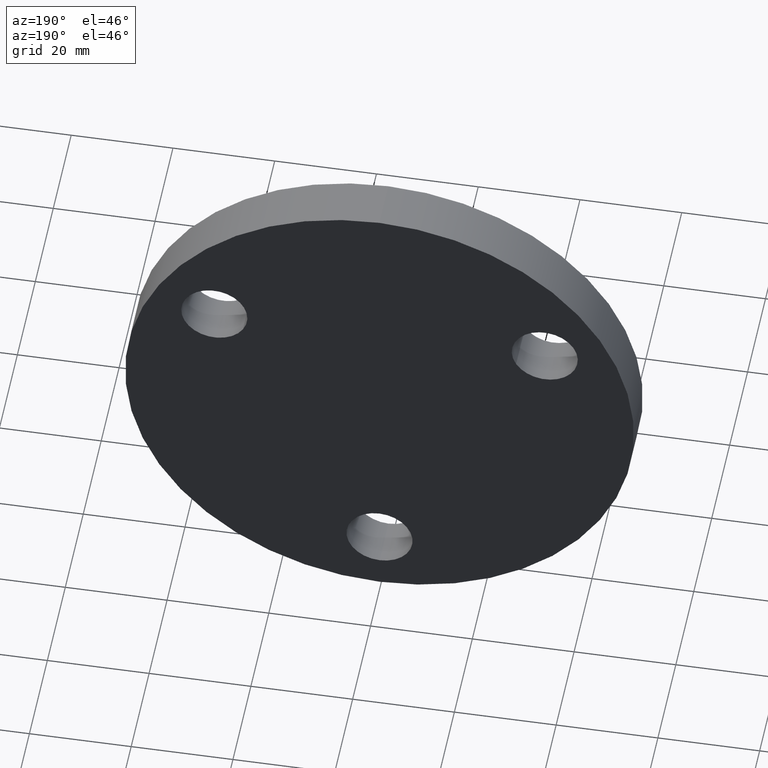
[diagram: clean part render]
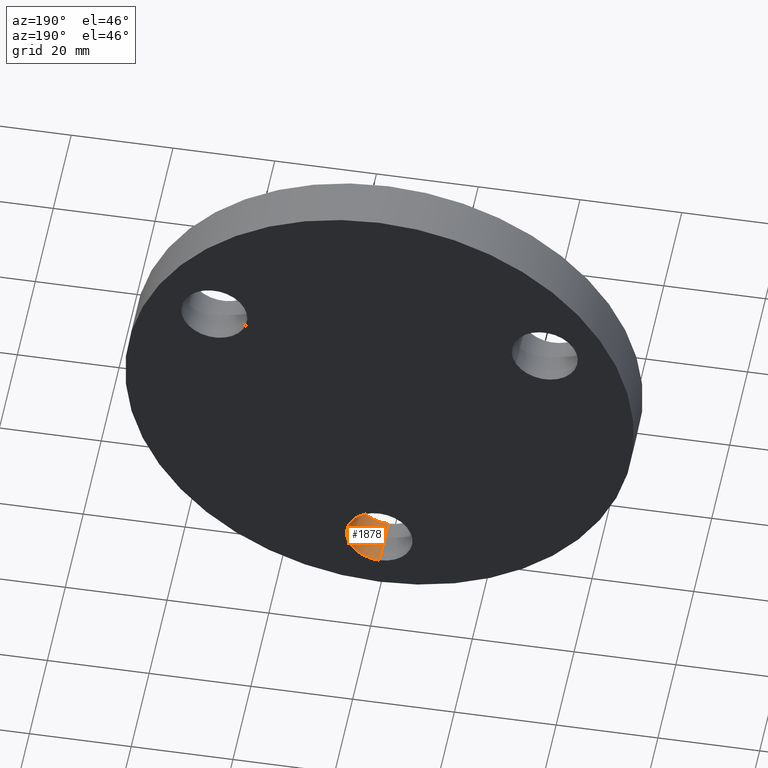
[diagram: same view with one face highlighted and labeled with its STEP entity id]
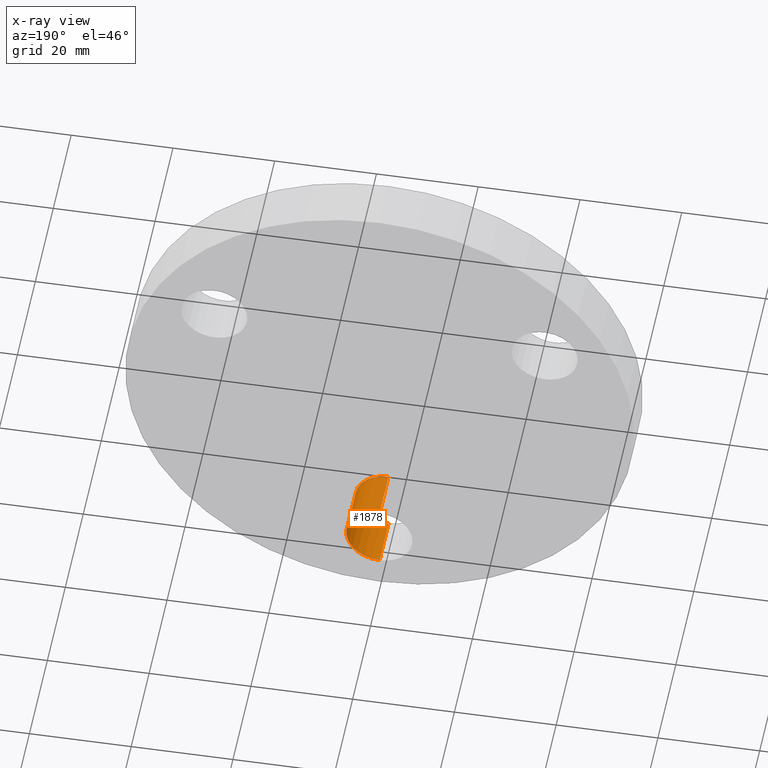
[diagram: x-ray of the same camera — body ghosted, the highlighted face saturated]
A machine part, auxiliary view. The second image highlights one B-rep face of the part: STEP entity #1878.
The next image is the same camera in x-ray: the body ghosted, the highlighted face saturated — about 2% of this face is hidden behind the body in this view.
In plain terms, the highlighted cylindrical surface (edge-blend (fillet) strip) has radius 6.5 mm, axis along (-0, 1, -0).
Its self-contained STEP definition (entity closure, byte-faithful):
#97 = AXIS2_PLACEMENT_3D ( 'NONE', #7902, #13154, #7071 ) ;
#1054 = EDGE_CURVE ( 'NONE', #3535, #10319, #12330, .T. ) ;
#1781 = DIRECTION ( 'NONE',  ( -0.0000000000000000000, 1.000000000000000000, -0.0000000000000000000 ) ) ;
#1873 = DIRECTION ( 'NONE',  ( 0.0000000000000000000, 1.000000000000000000, 0.0000000000000000000 ) ) ;
#1878 = ADVANCED_FACE ( 'NONE', ( #7552 ), #8647, .F. ) ;
#2480 = VECTOR ( 'NONE', #6260, 1000.000000000000000 ) ;
#2502 = VECTOR ( 'NONE', #1781, 1000.000000000000000 ) ;
#2837 = CARTESIAN_POINT ( 'NONE',  ( 7.960204194457797400E-016, 0.0000000000000000000, -44.00000000000000000 ) ) ;
#3054 = CARTESIAN_POINT ( 'NONE',  ( 7.960204194457795500E-016, 0.0000000000000000000, -44.00000000000000000 ) ) ;
#3503 = ORIENTED_EDGE ( 'NONE', *, *, #12245, .T. ) ;
#3535 = VERTEX_POINT ( 'NONE', #12768 ) ;
#3891 = DIRECTION ( 'NONE',  ( 0.0000000000000000000, 0.0000000000000000000, 1.000000000000000000 ) ) ;
#4795 = CARTESIAN_POINT ( 'NONE',  ( 0.0000000000000000000, 0.0000000000000000000, -31.00000000000000000 ) ) ;
#4849 = LINE ( 'NONE', #3054, #2480 ) ;
#5005 = ORIENTED_EDGE ( 'NONE', *, *, #1054, .T. ) ;
#5555 = EDGE_CURVE ( 'NONE', #8022, #6777, #4849, .T. ) ;
#6260 = DIRECTION ( 'NONE',  ( -0.0000000000000000000, 1.000000000000000000, -0.0000000000000000000 ) ) ;
#6777 = VERTEX_POINT ( 'NONE', #11121 ) ;
#6823 = CIRCLE ( 'NONE', #11857, 6.499999999999999100 ) ;
#7071 = DIRECTION ( 'NONE',  ( 0.0000000000000000000, 0.0000000000000000000, 1.000000000000000000 ) ) ;
#7413 = AXIS2_PLACEMENT_3D ( 'NONE', #7966, #1873, #13041 ) ;
#7552 = FACE_OUTER_BOUND ( 'NONE', #12420, .T. ) ;
#7671 = EDGE_CURVE ( 'NONE', #3535, #8022, #11333, .T. ) ;
#7902 = CARTESIAN_POINT ( 'NONE',  ( 0.0000000000000000000, 0.0000000000000000000, -37.50000000000000000 ) ) ;
#7966 = CARTESIAN_POINT ( 'NONE',  ( 0.0000000000000000000, 0.0000000000000000000, -37.50000000000000000 ) ) ;
#8022 = VERTEX_POINT ( 'NONE', #2837 ) ;
#8608 = ORIENTED_EDGE ( 'NONE', *, *, #5555, .F. ) ;
#8647 = CYLINDRICAL_SURFACE ( 'NONE', #97, 6.499999999999999100 ) ;
#9939 = DIRECTION ( 'NONE',  ( 0.0000000000000000000, 1.000000000000000000, 0.0000000000000000000 ) ) ;
#10319 = VERTEX_POINT ( 'NONE', #10716 ) ;
#10716 = CARTESIAN_POINT ( 'NONE',  ( 0.0000000000000000000, 10.00000000000000000, -31.00000000000000000 ) ) ;
#10869 = ORIENTED_EDGE ( 'NONE', *, *, #7671, .F. ) ;
#11121 = CARTESIAN_POINT ( 'NONE',  ( 7.960204194457797400E-016, 10.00000000000000000, -44.00000000000000000 ) ) ;
#11333 = CIRCLE ( 'NONE', #7413, 6.499999999999999100 ) ;
#11857 = AXIS2_PLACEMENT_3D ( 'NONE', #12942, #9939, #3891 ) ;
#12245 = EDGE_CURVE ( 'NONE', #10319, #6777, #6823, .T. ) ;
#12330 = LINE ( 'NONE', #4795, #2502 ) ;
#12420 = EDGE_LOOP ( 'NONE', ( #8608, #10869, #5005, #3503 ) ) ;
#12768 = CARTESIAN_POINT ( 'NONE',  ( 0.0000000000000000000, 0.0000000000000000000, -31.00000000000000000 ) ) ;
#12942 = CARTESIAN_POINT ( 'NONE',  ( 0.0000000000000000000, 10.00000000000000000, -37.50000000000000000 ) ) ;
#13041 = DIRECTION ( 'NONE',  ( 0.0000000000000000000, 0.0000000000000000000, 1.000000000000000000 ) ) ;
#13154 = DIRECTION ( 'NONE',  ( -0.0000000000000000000, 1.000000000000000000, -0.0000000000000000000 ) ) ;